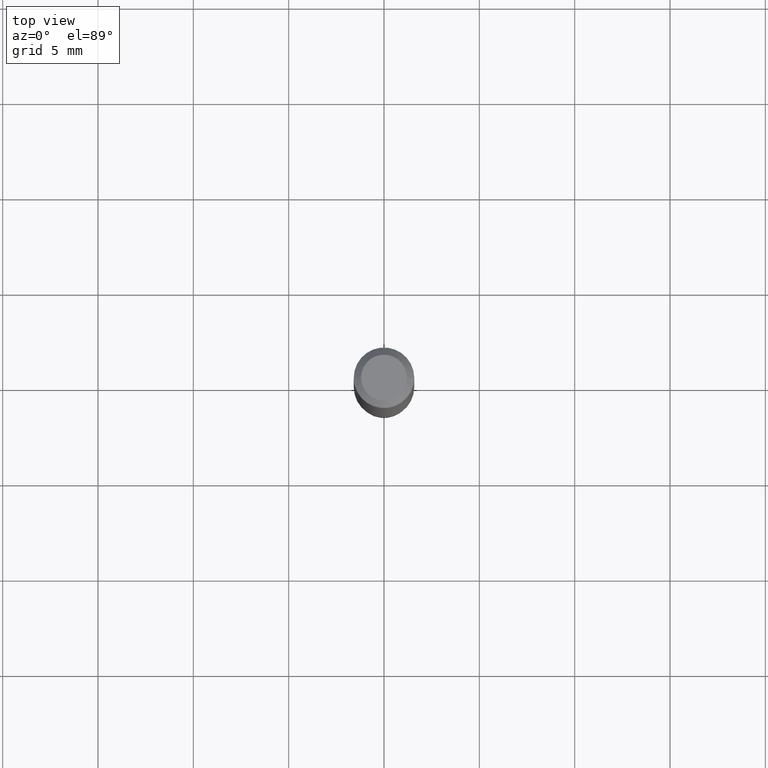
[diagram: clean part render]
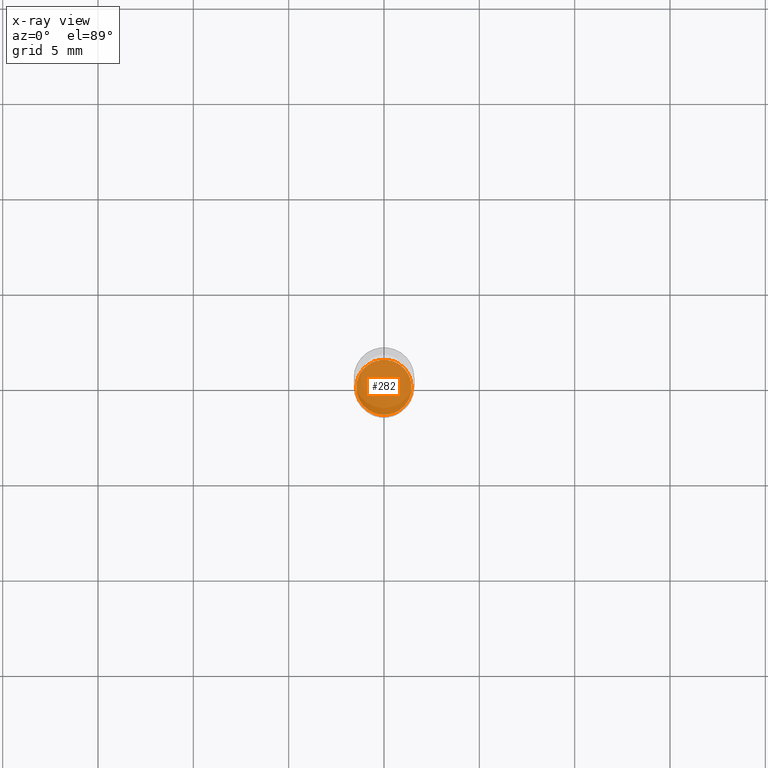
[diagram: x-ray — body ghosted, one internal face saturated and labeled with its STEP entity id]
A machine part, top view, then the same camera in x-ray: the body is ghosted and one INTERNAL B-rep face — a face not visible from any outside direction — is saturated and labeled: STEP entity #282.
In plain terms, the highlighted planar face has unit normal (-0, 0, 1).
Its self-contained STEP definition (entity closure, byte-faithful):
#15 = DIRECTION ( 'NONE',  ( -2.438088387897960049E-29, 3.491481338843145188E-15, 1.000000000000000000 ) ) ;
#20 = DIRECTION ( 'NONE',  ( 1.000000000000000000, -6.982962677686266711E-15, 0.000000000000000000 ) ) ;
#48 = DIRECTION ( 'NONE',  ( -2.445468806185136597E-29, 3.491481338843145583E-15, 1.000000000000000000 ) ) ;
#64 = VERTEX_POINT ( 'NONE', #242 ) ;
#90 = FACE_OUTER_BOUND ( 'NONE', #359, .T. ) ;
#111 = AXIS2_PLACEMENT_3D ( 'NONE', #299, #15, #495 ) ;
#182 = VERTEX_POINT ( 'NONE', #283 ) ;
#212 = CARTESIAN_POINT ( 'NONE',  ( 2.824516471143833307E-29, -4.032660946363833383E-15, -1.155000000000000027 ) ) ;
#217 = PLANE ( 'NONE',  #111 ) ;
#225 = EDGE_CURVE ( 'NONE', #182, #64, #436, .T. ) ;
#238 = CIRCLE ( 'NONE', #246, 0.05699999999999998818 ) ;
#242 = CARTESIAN_POINT ( 'NONE',  ( 0.05699999999999998818, -4.430689818991950396E-15, -1.155000000000000027 ) ) ;
#246 = AXIS2_PLACEMENT_3D ( 'NONE', #212, #363, #260 ) ;
#260 = DIRECTION ( 'NONE',  ( 1.000000000000000000, -6.982962677686266711E-15, 0.000000000000000000 ) ) ;
#282 = ADVANCED_FACE ( 'NONE', ( #90 ), #217, .F. ) ;
#283 = CARTESIAN_POINT ( 'NONE',  ( -0.05699999999999998818, -3.625002359806465505E-15, -1.155000000000000027 ) ) ;
#285 = AXIS2_PLACEMENT_3D ( 'NONE', #376, #48, #20 ) ;
#299 = CARTESIAN_POINT ( 'NONE',  ( 2.824516471143833307E-29, -4.032660946363833383E-15, -1.155000000000000027 ) ) ;
#306 = ORIENTED_EDGE ( 'NONE', *, *, #464, .F. ) ;
#359 = EDGE_LOOP ( 'NONE', ( #306, #445 ) ) ;
#363 = DIRECTION ( 'NONE',  ( -2.445468806185136597E-29, 3.491481338843145583E-15, 1.000000000000000000 ) ) ;
#376 = CARTESIAN_POINT ( 'NONE',  ( 2.824516471143833307E-29, -4.032660946363833383E-15, -1.155000000000000027 ) ) ;
#436 = CIRCLE ( 'NONE', #285, 0.05699999999999998818 ) ;
#445 = ORIENTED_EDGE ( 'NONE', *, *, #225, .F. ) ;
#464 = EDGE_CURVE ( 'NONE', #64, #182, #238, .T. ) ;
#495 = DIRECTION ( 'NONE',  ( 1.000000000000000000, -6.982962677686265922E-15, 4.876176775795935793E-29 ) ) ;